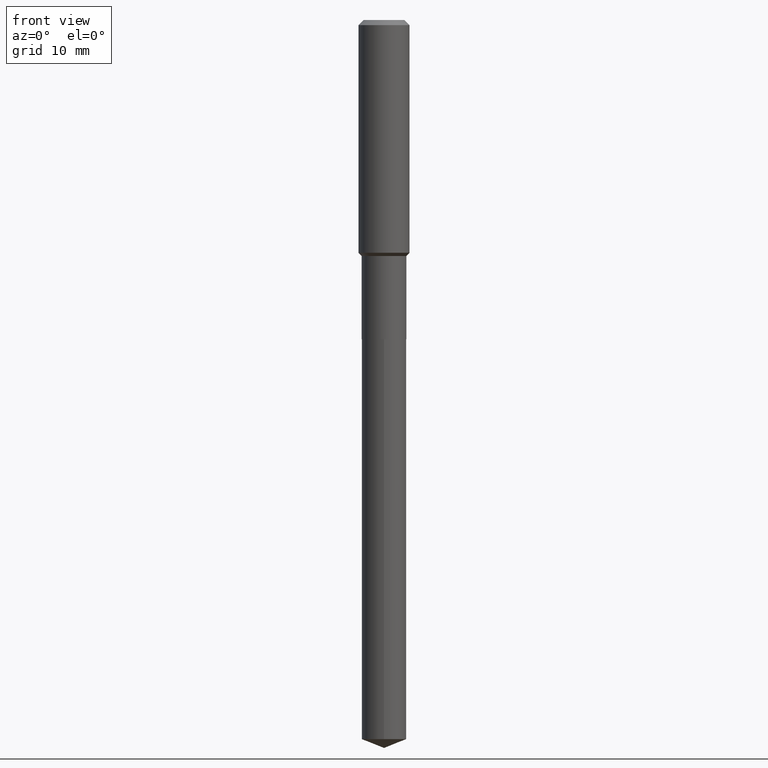
[diagram: clean part render]
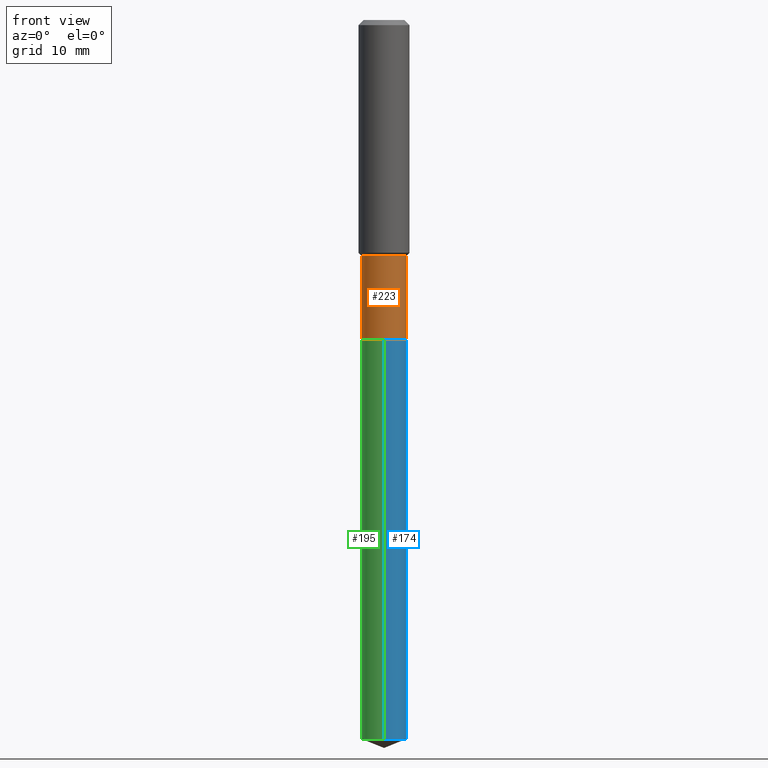
[diagram: same view with three faces highlighted in distinct colors, each labeled with its STEP entity id]
A machine part, front view with three faces highlighted in distinct colors.
Their STEP definitions:

[orange] entity #223 — the highlighted cylindrical surface (edge-blend (fillet) strip) has radius 3.5001 mm, axis along (-0, 0, 1).
#45 = LINE ( 'NONE', #164, #69 ) ;
#47 = VERTEX_POINT ( 'NONE', #304 ) ;
#57 = CARTESIAN_POINT ( 'NONE',  ( 0.1377999999999999503, -6.041659308734175420E-15, -1.454800000000000093 ) ) ;
#60 = ORIENTED_EDGE ( 'NONE', *, *, #72, .T. ) ;
#61 = CIRCLE ( 'NONE', #188, 0.1378000000000000058 ) ;
#69 = VECTOR ( 'NONE', #83, 39.37007874015748143 ) ;
#72 = EDGE_CURVE ( 'NONE', #47, #398, #161, .T. ) ;
#80 = VECTOR ( 'NONE', #158, 39.37007874015748143 ) ;
#83 = DIRECTION ( 'NONE',  ( -2.445468806185136877E-29, 3.491481338843145188E-15, 1.000000000000000000 ) ) ;
#86 = DIRECTION ( 'NONE',  ( 1.000000000000000000, -6.982962677686268288E-15, 0.000000000000000000 ) ) ;
#90 = DIRECTION ( 'NONE',  ( 1.000000000000000000, -6.982962677686267499E-15, 4.876176775795935793E-29 ) ) ;
#97 = VERTEX_POINT ( 'NONE', #461 ) ;
#106 = EDGE_LOOP ( 'NONE', ( #326, #464, #60, #276 ) ) ;
#130 = CYLINDRICAL_SURFACE ( 'NONE', #469, 0.1377999999999999781 ) ;
#142 = CIRCLE ( 'NONE', #152, 0.1377999999999999503 ) ;
#143 = EDGE_CURVE ( 'NONE', #346, #398, #142, .T. ) ;
#152 = AXIS2_PLACEMENT_3D ( 'NONE', #190, #420, #86 ) ;
#158 = DIRECTION ( 'NONE',  ( -2.445468806185136877E-29, 3.491481338843145188E-15, 1.000000000000000000 ) ) ;
#161 = LINE ( 'NONE', #309, #80 ) ;
#164 = CARTESIAN_POINT ( 'NONE',  ( -0.1377999999999999781, 9.791278898774179003E-16, -6.778292554371258633E-30 ) ) ;
#188 = AXIS2_PLACEMENT_3D ( 'NONE', #207, #350, #205 ) ;
#190 = CARTESIAN_POINT ( 'NONE',  ( 3.557668019238137054E-29, -5.079407051749007943E-15, -1.454800000000000093 ) ) ;
#205 = DIRECTION ( 'NONE',  ( 1.000000000000000000, -6.982962677686265922E-15, 0.000000000000000000 ) ) ;
#207 = CARTESIAN_POINT ( 'NONE',  ( 4.812682610572349594E-29, -6.871235274843310993E-15, -1.968000000000000194 ) ) ;
#214 = EDGE_CURVE ( 'NONE', #97, #346, #45, .T. ) ;
#223 = ADVANCED_FACE ( 'NONE', ( #231 ), #130, .T. ) ;
#231 = FACE_OUTER_BOUND ( 'NONE', #106, .T. ) ;
#275 = DIRECTION ( 'NONE',  ( -2.445468806185136597E-29, 3.491481338843145583E-15, 1.000000000000000000 ) ) ;
#276 = ORIENTED_EDGE ( 'NONE', *, *, #143, .F. ) ;
#304 = CARTESIAN_POINT ( 'NONE',  ( 0.1378000000000000058, -7.833487531828478470E-15, -1.968000000000000194 ) ) ;
#308 = CARTESIAN_POINT ( 'NONE',  ( -0.1377999999999999503, -4.996193273418741568E-15, -1.454800000000000093 ) ) ;
#309 = CARTESIAN_POINT ( 'NONE',  ( 0.1377999999999999781, -9.622522569851674770E-16, 6.719371597046798536E-30 ) ) ;
#326 = ORIENTED_EDGE ( 'NONE', *, *, #214, .F. ) ;
#346 = VERTEX_POINT ( 'NONE', #308 ) ;
#350 = DIRECTION ( 'NONE',  ( -2.445468806185136597E-29, 3.491481338843145583E-15, 1.000000000000000000 ) ) ;
#398 = VERTEX_POINT ( 'NONE', #57 ) ;
#420 = DIRECTION ( 'NONE',  ( -2.445468806185136597E-29, 3.491481338843145583E-15, 1.000000000000000000 ) ) ;
#422 = CARTESIAN_POINT ( 'NONE',  ( 0.000000000000000000, 0.000000000000000000, 0.000000000000000000 ) ) ;
#449 = EDGE_CURVE ( 'NONE', #97, #47, #61, .T. ) ;
#461 = CARTESIAN_POINT ( 'NONE',  ( -0.1378000000000000058, -4.996193273418741568E-15, -1.968000000000000194 ) ) ;
#464 = ORIENTED_EDGE ( 'NONE', *, *, #449, .T. ) ;
#469 = AXIS2_PLACEMENT_3D ( 'NONE', #422, #275, #90 ) ;

[blue] entity #174 — the highlighted cylindrical surface (edge-blend (fillet) strip) has radius 3.5001 mm, axis along (-0, 0, 1).
#12 = ORIENTED_EDGE ( 'NONE', *, *, #402, .F. ) ;
#13 = CARTESIAN_POINT ( 'NONE',  ( 4.813905344975441835E-29, -6.872981015512731707E-15, -1.968500000000000139 ) ) ;
#36 = VECTOR ( 'NONE', #278, 39.37007874015748143 ) ;
#42 = CARTESIAN_POINT ( 'NONE',  ( -9.622522569851193565E-16, -0.1378000000000068892, -1.968499999999999472 ) ) ;
#48 = DIRECTION ( 'NONE',  ( -2.445397477310179660E-29, 3.491583485851871163E-15, 1.000000000000000000 ) ) ;
#53 = CIRCLE ( 'NONE', #442, 0.1378000000000000058 ) ;
#85 = DIRECTION ( 'NONE',  ( -2.445397477310179660E-29, 3.491583485851871163E-15, 1.000000000000000000 ) ) ;
#99 = AXIS2_PLACEMENT_3D ( 'NONE', #411, #48, #384 ) ;
#101 = CIRCLE ( 'NONE', #377, 0.1378000000000000058 ) ;
#103 = VERTEX_POINT ( 'NONE', #126 ) ;
#125 = CARTESIAN_POINT ( 'NONE',  ( 9.791278898775265658E-16, 0.1377999999999845182, -4.433919136460261257 ) ) ;
#126 = CARTESIAN_POINT ( 'NONE',  ( 9.791278898775271575E-16, 0.1377999999999931502, -1.968500000000000583 ) ) ;
#128 = VERTEX_POINT ( 'NONE', #337 ) ;
#133 = CARTESIAN_POINT ( 'NONE',  ( -9.622522569851193565E-16, -0.1378000000000068892, -1.968499999999999250 ) ) ;
#136 = VERTEX_POINT ( 'NONE', #42 ) ;
#137 = LINE ( 'NONE', #133, #36 ) ;
#170 = DIRECTION ( 'NONE',  ( -2.445397477310179380E-29, 3.491583485851871163E-15, 1.000000000000000000 ) ) ;
#172 = DIRECTION ( 'NONE',  ( -2.445397477310179660E-29, 3.491583485851871163E-15, 1.000000000000000000 ) ) ;
#174 = ADVANCED_FACE ( 'NONE', ( #302 ), #233, .T. ) ;
#199 = EDGE_LOOP ( 'NONE', ( #428, #253, #314, #12 ) ) ;
#208 = VECTOR ( 'NONE', #170, 39.37007874015748143 ) ;
#233 = CYLINDRICAL_SURFACE ( 'NONE', #99, 0.1378000000000000058 ) ;
#235 = LINE ( 'NONE', #316, #208 ) ;
#243 = DIRECTION ( 'NONE',  ( -6.982962677686265922E-15, -1.000000000000000000, 3.964946289788480896E-15 ) ) ;
#253 = ORIENTED_EDGE ( 'NONE', *, *, #344, .T. ) ;
#278 = DIRECTION ( 'NONE',  ( -2.445397477310179380E-29, 3.491583485851871163E-15, 1.000000000000000000 ) ) ;
#302 = FACE_OUTER_BOUND ( 'NONE', #199, .T. ) ;
#314 = ORIENTED_EDGE ( 'NONE', *, *, #351, .F. ) ;
#316 = CARTESIAN_POINT ( 'NONE',  ( 9.791278898774662180E-16, 0.1377999999999931224, -1.968500000000000361 ) ) ;
#337 = CARTESIAN_POINT ( 'NONE',  ( -9.622522569850590086E-16, -0.1378000000000154934, -4.433919136460260368 ) ) ;
#344 = EDGE_CURVE ( 'NONE', #459, #103, #235, .T. ) ;
#351 = EDGE_CURVE ( 'NONE', #136, #103, #101, .T. ) ;
#377 = AXIS2_PLACEMENT_3D ( 'NONE', #13, #172, #383 ) ;
#383 = DIRECTION ( 'NONE',  ( -6.982962677686265922E-15, -1.000000000000000000, 3.964946289788480896E-15 ) ) ;
#384 = DIRECTION ( 'NONE',  ( -6.982962677686265922E-15, -1.000000000000000000, 3.964946289788480896E-15 ) ) ;
#402 = EDGE_CURVE ( 'NONE', #128, #136, #137, .T. ) ;
#411 = CARTESIAN_POINT ( 'NONE',  ( 4.813905344975440714E-29, -6.872981015512730918E-15, -1.968499999999999694 ) ) ;
#414 = EDGE_CURVE ( 'NONE', #128, #459, #53, .T. ) ;
#428 = ORIENTED_EDGE ( 'NONE', *, *, #414, .T. ) ;
#431 = CARTESIAN_POINT ( 'NONE',  ( 1.084283508178760596E-28, -1.548119775808055903E-14, -4.433919136460261257 ) ) ;
#442 = AXIS2_PLACEMENT_3D ( 'NONE', #431, #85, #243 ) ;
#459 = VERTEX_POINT ( 'NONE', #125 ) ;

[green] entity #195 — the highlighted cylindrical surface (edge-blend (fillet) strip) has radius 3.5001 mm, axis along (-0, 0, 1).
#11 = AXIS2_PLACEMENT_3D ( 'NONE', #225, #266, #454 ) ;
#19 = AXIS2_PLACEMENT_3D ( 'NONE', #249, #481, #322 ) ;
#21 = EDGE_CURVE ( 'NONE', #459, #128, #175, .T. ) ;
#35 = EDGE_CURVE ( 'NONE', #103, #136, #286, .T. ) ;
#36 = VECTOR ( 'NONE', #278, 39.37007874015748143 ) ;
#42 = CARTESIAN_POINT ( 'NONE',  ( -9.622522569851193565E-16, -0.1378000000000068892, -1.968499999999999472 ) ) ;
#49 = ORIENTED_EDGE ( 'NONE', *, *, #35, .F. ) ;
#75 = AXIS2_PLACEMENT_3D ( 'NONE', #367, #179, #211 ) ;
#103 = VERTEX_POINT ( 'NONE', #126 ) ;
#117 = CYLINDRICAL_SURFACE ( 'NONE', #11, 0.1378000000000000058 ) ;
#125 = CARTESIAN_POINT ( 'NONE',  ( 9.791278898775265658E-16, 0.1377999999999845182, -4.433919136460261257 ) ) ;
#126 = CARTESIAN_POINT ( 'NONE',  ( 9.791278898775271575E-16, 0.1377999999999931502, -1.968500000000000583 ) ) ;
#128 = VERTEX_POINT ( 'NONE', #337 ) ;
#133 = CARTESIAN_POINT ( 'NONE',  ( -9.622522569851193565E-16, -0.1378000000000068892, -1.968499999999999250 ) ) ;
#136 = VERTEX_POINT ( 'NONE', #42 ) ;
#137 = LINE ( 'NONE', #133, #36 ) ;
#170 = DIRECTION ( 'NONE',  ( -2.445397477310179380E-29, 3.491583485851871163E-15, 1.000000000000000000 ) ) ;
#175 = CIRCLE ( 'NONE', #19, 0.1378000000000000058 ) ;
#179 = DIRECTION ( 'NONE',  ( -2.445397477310179660E-29, 3.491583485851871163E-15, 1.000000000000000000 ) ) ;
#195 = ADVANCED_FACE ( 'NONE', ( #453 ), #117, .T. ) ;
#208 = VECTOR ( 'NONE', #170, 39.37007874015748143 ) ;
#211 = DIRECTION ( 'NONE',  ( -6.982962677686265922E-15, -1.000000000000000000, 3.964946289788480896E-15 ) ) ;
#225 = CARTESIAN_POINT ( 'NONE',  ( 4.813905344975440714E-29, -6.872981015512730918E-15, -1.968499999999999694 ) ) ;
#230 = ORIENTED_EDGE ( 'NONE', *, *, #402, .T. ) ;
#235 = LINE ( 'NONE', #316, #208 ) ;
#249 = CARTESIAN_POINT ( 'NONE',  ( 1.084283508178760596E-28, -1.548119775808055903E-14, -4.433919136460261257 ) ) ;
#266 = DIRECTION ( 'NONE',  ( -2.445397477310179660E-29, 3.491583485851871163E-15, 1.000000000000000000 ) ) ;
#278 = DIRECTION ( 'NONE',  ( -2.445397477310179380E-29, 3.491583485851871163E-15, 1.000000000000000000 ) ) ;
#286 = CIRCLE ( 'NONE', #75, 0.1378000000000000058 ) ;
#316 = CARTESIAN_POINT ( 'NONE',  ( 9.791278898774662180E-16, 0.1377999999999931224, -1.968500000000000361 ) ) ;
#322 = DIRECTION ( 'NONE',  ( -6.982962677686265922E-15, -1.000000000000000000, 3.964946289788480896E-15 ) ) ;
#337 = CARTESIAN_POINT ( 'NONE',  ( -9.622522569850590086E-16, -0.1378000000000154934, -4.433919136460260368 ) ) ;
#344 = EDGE_CURVE ( 'NONE', #459, #103, #235, .T. ) ;
#349 = ORIENTED_EDGE ( 'NONE', *, *, #21, .T. ) ;
#352 = ORIENTED_EDGE ( 'NONE', *, *, #344, .F. ) ;
#359 = EDGE_LOOP ( 'NONE', ( #352, #349, #230, #49 ) ) ;
#367 = CARTESIAN_POINT ( 'NONE',  ( 4.813905344975441835E-29, -6.872981015512731707E-15, -1.968500000000000139 ) ) ;
#402 = EDGE_CURVE ( 'NONE', #128, #136, #137, .T. ) ;
#453 = FACE_OUTER_BOUND ( 'NONE', #359, .T. ) ;
#454 = DIRECTION ( 'NONE',  ( -6.982962677686265922E-15, -1.000000000000000000, 3.964946289788480896E-15 ) ) ;
#459 = VERTEX_POINT ( 'NONE', #125 ) ;
#481 = DIRECTION ( 'NONE',  ( -2.445397477310179660E-29, 3.491583485851871163E-15, 1.000000000000000000 ) ) ;